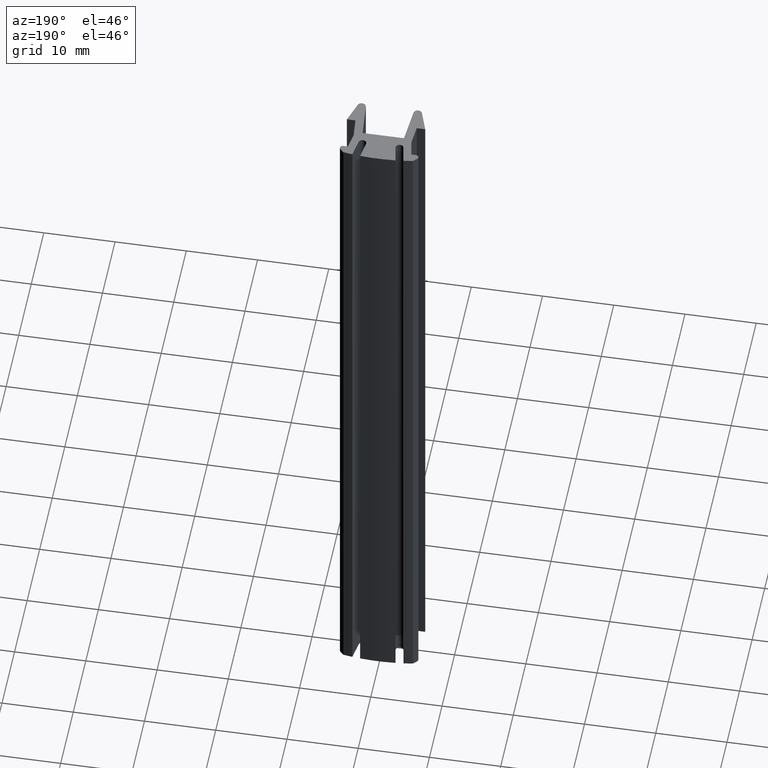
[diagram: clean part render]
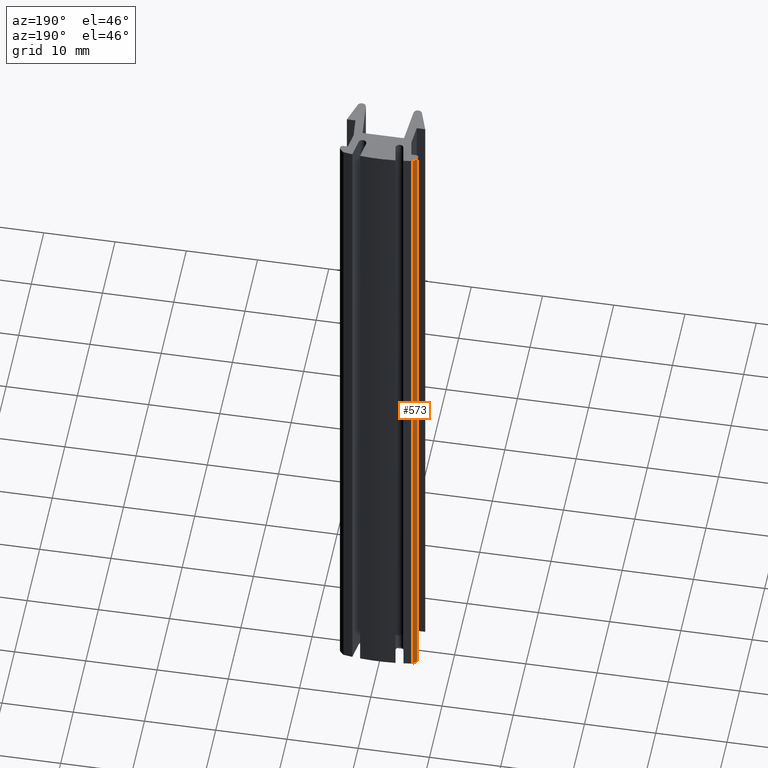
[diagram: same view with one face highlighted and labeled with its STEP entity id]
A machine part, auxiliary view. The second image highlights one B-rep face of the part: STEP entity #573.
In plain terms, the highlighted planar face has unit normal (-0.7071, 0.7071, 0).
Its self-contained STEP definition (entity closure, byte-faithful):
#52=FACE_OUTER_BOUND('',#82,.T.);
#82=EDGE_LOOP('',(#414,#415,#416,#417));
#128=LINE('',#888,#194);
#129=LINE('',#891,#195);
#130=LINE('',#893,#196);
#131=LINE('',#894,#197);
#194=VECTOR('',#717,10.);
#195=VECTOR('',#720,10.);
#196=VECTOR('',#721,10.);
#197=VECTOR('',#722,10.);
#254=VERTEX_POINT('',#884);
#255=VERTEX_POINT('',#886);
#256=VERTEX_POINT('',#890);
#257=VERTEX_POINT('',#892);
#320=EDGE_CURVE('',#254,#255,#128,.T.);
#321=EDGE_CURVE('',#256,#254,#129,.T.);
#322=EDGE_CURVE('',#257,#255,#130,.T.);
#323=EDGE_CURVE('',#256,#257,#131,.T.);
#414=ORIENTED_EDGE('',*,*,#321,.T.);
#415=ORIENTED_EDGE('',*,*,#320,.T.);
#416=ORIENTED_EDGE('',*,*,#322,.F.);
#417=ORIENTED_EDGE('',*,*,#323,.F.);
#550=PLANE('',#627);
#573=ADVANCED_FACE('',(#52),#550,.T.);
#627=AXIS2_PLACEMENT_3D('',#889,#718,#719);
#717=DIRECTION('',(0.,0.,1.));
#718=DIRECTION('center_axis',(-0.707106781186548,0.707106781186548,0.));
#719=DIRECTION('ref_axis',(-0.707106781186548,-0.707106781186548,0.));
#720=DIRECTION('',(-0.707106781186548,-0.707106781186548,0.));
#721=DIRECTION('',(-0.707106781186548,-0.707106781186548,0.));
#722=DIRECTION('',(0.,0.,1.));
#884=CARTESIAN_POINT('',(-5.3828427282273,3.59996361804343,0.));
#886=CARTESIAN_POINT('',(-5.3828427282273,3.59996361804343,100.));
#888=CARTESIAN_POINT('',(-5.3828427282273,3.59996361804343,0.));
#889=CARTESIAN_POINT('Origin',(-4.8828427282273,4.09996361804343,0.));
#890=CARTESIAN_POINT('',(-4.8828427282273,4.09996361804343,0.));
#891=CARTESIAN_POINT('',(-4.8828427282273,4.09996361804343,0.));
#892=CARTESIAN_POINT('',(-4.8828427282273,4.09996361804343,100.));
#893=CARTESIAN_POINT('',(-4.8828427282273,4.09996361804343,100.));
#894=CARTESIAN_POINT('',(-4.8828427282273,4.09996361804343,0.));